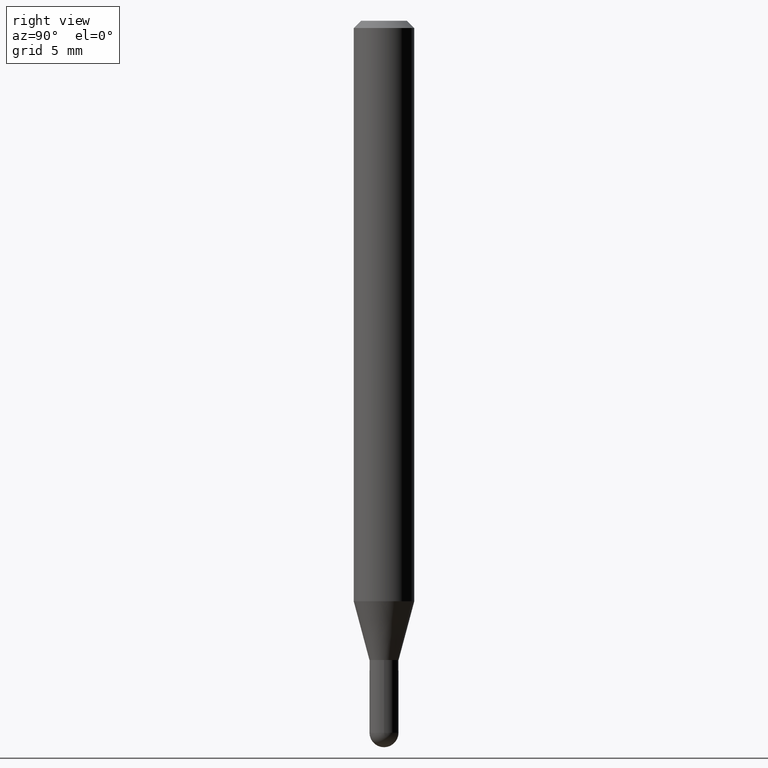
[diagram: clean part render]
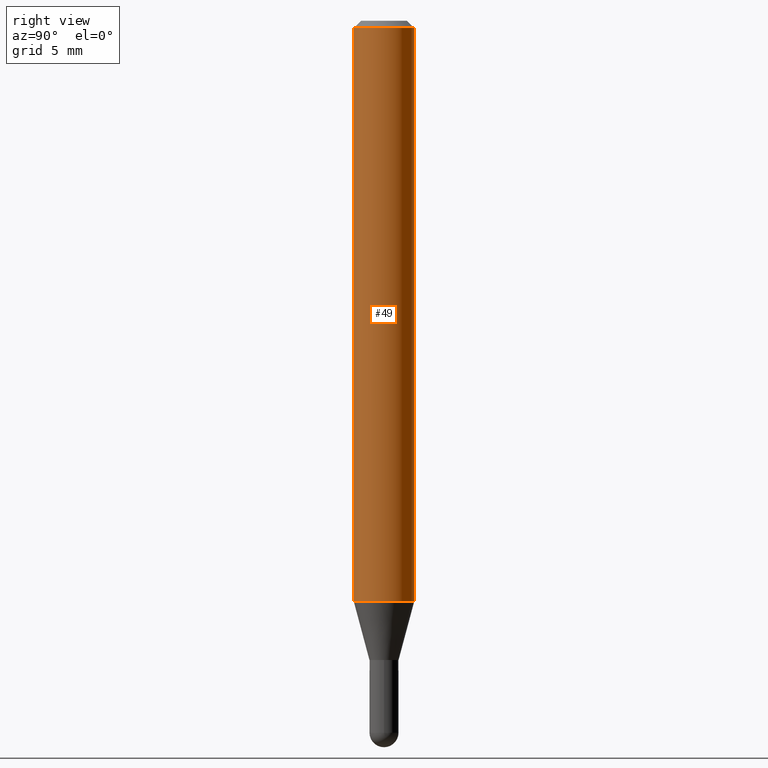
[diagram: same view with one face highlighted and labeled with its STEP entity id]
A machine part, right view. The second image highlights one B-rep face of the part: STEP entity #49.
In plain terms, the highlighted cylindrical surface (edge-blend (fillet) strip) has radius 1.5875 mm, axis along (-0, 0, 1).
Its self-contained STEP definition (entity closure, byte-faithful):
#38 = CARTESIAN_POINT ( 'NONE',  ( 0.000000000000000000, 0.000000000000000000, 0.000000000000000000 ) ) ;
#40 = AXIS2_PLACEMENT_3D ( 'NONE', #173, #408, #508 ) ;
#49 = ADVANCED_FACE ( 'NONE', ( #109 ), #340, .T. ) ;
#51 = AXIS2_PLACEMENT_3D ( 'NONE', #456, #216, #501 ) ;
#68 = EDGE_LOOP ( 'NONE', ( #206, #324, #168, #444 ) ) ;
#86 = VERTEX_POINT ( 'NONE', #211 ) ;
#90 = EDGE_CURVE ( 'NONE', #164, #364, #427, .T. ) ;
#98 = LINE ( 'NONE', #251, #322 ) ;
#109 = FACE_OUTER_BOUND ( 'NONE', #68, .T. ) ;
#135 = DIRECTION ( 'NONE',  ( -2.445459950379643973E-29, 3.491494020860651909E-15, 1.000000000000000000 ) ) ;
#141 = CIRCLE ( 'NONE', #51, 0.06250000000000000000 ) ;
#147 = LINE ( 'NONE', #387, #209 ) ;
#151 = DIRECTION ( 'NONE',  ( -2.445459950379643973E-29, 3.491494020860651909E-15, 1.000000000000000000 ) ) ;
#164 = VERTEX_POINT ( 'NONE', #348 ) ;
#168 = ORIENTED_EDGE ( 'NONE', *, *, #432, .F. ) ;
#169 = CARTESIAN_POINT ( 'NONE',  ( -4.364351673553912750E-16, -0.06250000000000005551, -0.01499999999999979128 ) ) ;
#173 = CARTESIAN_POINT ( 'NONE',  ( 2.931393259063662766E-29, -4.185283032430394746E-15, -1.198708348754016662 ) ) ;
#193 = EDGE_CURVE ( 'NONE', #364, #86, #98, .T. ) ;
#206 = ORIENTED_EDGE ( 'NONE', *, *, #90, .T. ) ;
#209 = VECTOR ( 'NONE', #459, 39.37007874015748143 ) ;
#211 = CARTESIAN_POINT ( 'NONE',  ( 4.440892098500920998E-16, 0.06249999999999995143, -0.01500000000000022669 ) ) ;
#216 = DIRECTION ( 'NONE',  ( -2.445459950379643973E-29, 3.491494020860651909E-15, 1.000000000000000000 ) ) ;
#251 = CARTESIAN_POINT ( 'NONE',  ( 4.440892098500625669E-16, 0.06250000000000000000, -2.182183763037907443E-16 ) ) ;
#257 = VERTEX_POINT ( 'NONE', #169 ) ;
#301 = DIRECTION ( 'NONE',  ( -6.982962677686265922E-15, -1.000000000000000000, 3.491494020860651909E-15 ) ) ;
#322 = VECTOR ( 'NONE', #135, 39.37007874015748143 ) ;
#324 = ORIENTED_EDGE ( 'NONE', *, *, #193, .T. ) ;
#340 = CYLINDRICAL_SURFACE ( 'NONE', #411, 0.06250000000000000000 ) ;
#348 = CARTESIAN_POINT ( 'NONE',  ( -4.364351673553625802E-16, -0.06250000000000420497, -1.198708348754016439 ) ) ;
#364 = VERTEX_POINT ( 'NONE', #410 ) ;
#387 = CARTESIAN_POINT ( 'NONE',  ( -4.364351673553916201E-16, -0.06250000000000000000, 2.182183763037907443E-16 ) ) ;
#408 = DIRECTION ( 'NONE',  ( -2.445459950379643973E-29, 3.491494020860651909E-15, 1.000000000000000000 ) ) ;
#410 = CARTESIAN_POINT ( 'NONE',  ( 4.440892098500916068E-16, 0.06249999999999578809, -1.198708348754016884 ) ) ;
#411 = AXIS2_PLACEMENT_3D ( 'NONE', #38, #151, #301 ) ;
#427 = CIRCLE ( 'NONE', #40, 0.06250000000000000000 ) ;
#432 = EDGE_CURVE ( 'NONE', #257, #86, #141, .T. ) ;
#444 = ORIENTED_EDGE ( 'NONE', *, *, #460, .F. ) ;
#456 = CARTESIAN_POINT ( 'NONE',  ( 3.668189925569468499E-31, -5.237241031290981167E-17, -0.01500000000000000812 ) ) ;
#459 = DIRECTION ( 'NONE',  ( -2.445459950379643973E-29, 3.491494020860651909E-15, 1.000000000000000000 ) ) ;
#460 = EDGE_CURVE ( 'NONE', #164, #257, #147, .T. ) ;
#501 = DIRECTION ( 'NONE',  ( -6.982962677686265922E-15, -1.000000000000000000, 3.483106191921935554E-15 ) ) ;
#508 = DIRECTION ( 'NONE',  ( -6.982962677686265922E-15, -1.000000000000000000, 4.370956789862821150E-15 ) ) ;